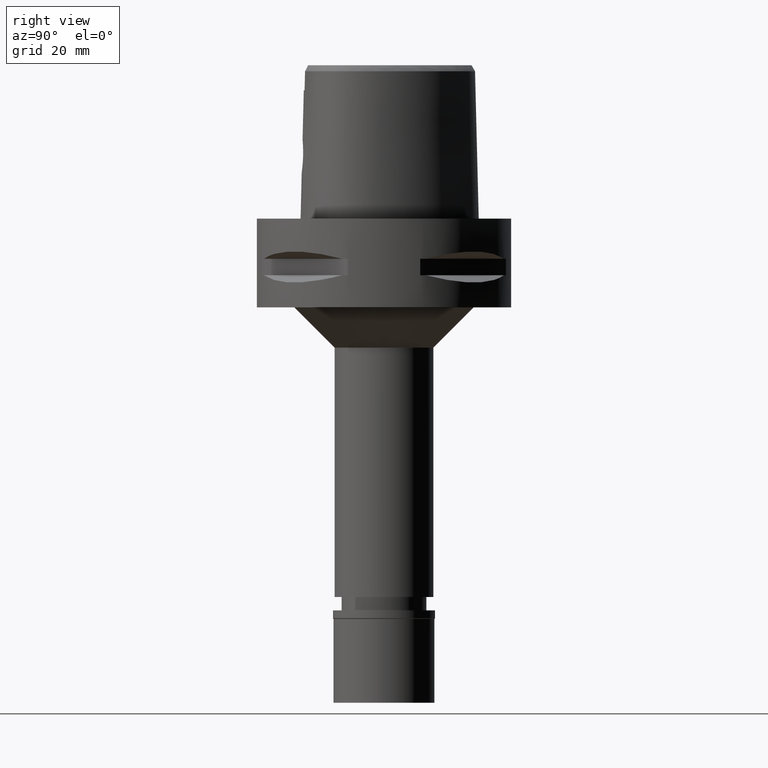
[diagram: clean part render]
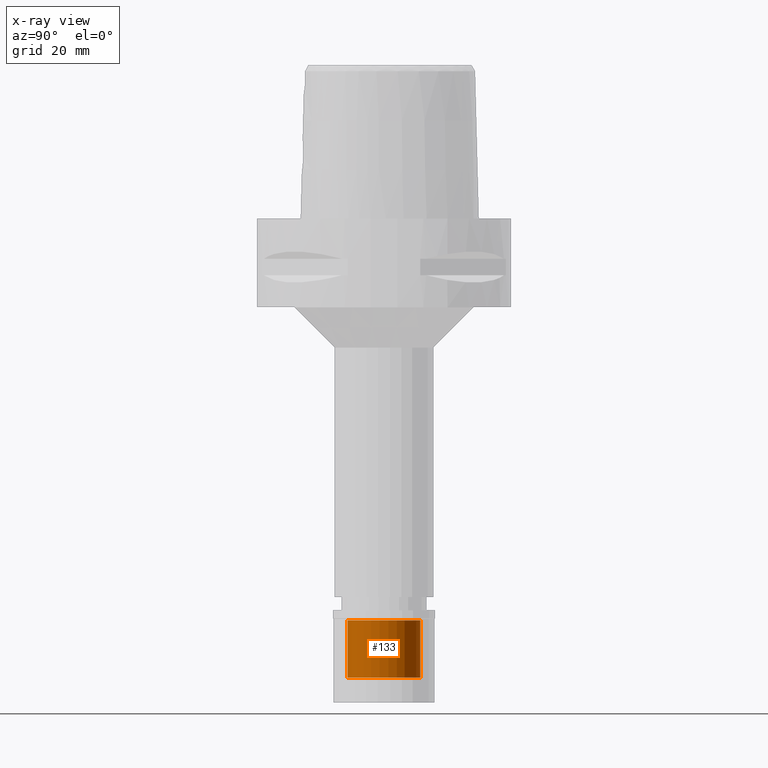
[diagram: x-ray — body ghosted, one internal face saturated and labeled with its STEP entity id]
A machine part, right view, then the same camera in x-ray: the body is ghosted and one INTERNAL B-rep face — a face not visible from any outside direction — is saturated and labeled: STEP entity #133.
In plain terms, the highlighted cylindrical surface (edge-blend (fillet) strip) has radius 9 mm, axis along (0, 0, -1).
Its self-contained STEP definition (entity closure, byte-faithful):
#133 = ADVANCED_FACE ( 'NONE', ( #753 ), #2309, .F. ) ;
#322 = AXIS2_PLACEMENT_3D ( 'NONE', #828, #855, #1645 ) ;
#340 = CARTESIAN_POINT ( 'NONE',  ( 0.0000000000000000000, 0.0000000000000000000, -2.500000000000000000 ) ) ;
#465 = CARTESIAN_POINT ( 'NONE',  ( 0.0000000000000000000, 9.000000000000000000, -2.500000000000000000 ) ) ;
#753 = FACE_OUTER_BOUND ( 'NONE', #2049, .T. ) ;
#828 = CARTESIAN_POINT ( 'NONE',  ( 0.0000000000000000000, 0.0000000000000000000, 0.0000000000000000000 ) ) ;
#832 = VECTOR ( 'NONE', #4109, 1000.000000000000000 ) ;
#855 = DIRECTION ( 'NONE',  ( 0.0000000000000000000, 0.0000000000000000000, -1.000000000000000000 ) ) ;
#910 = VERTEX_POINT ( 'NONE', #1503 ) ;
#962 = CARTESIAN_POINT ( 'NONE',  ( 0.0000000000000000000, 9.000000000000000000, -16.69999999999999929 ) ) ;
#992 = AXIS2_PLACEMENT_3D ( 'NONE', #340, #1536, #5049 ) ;
#1070 = CARTESIAN_POINT ( 'NONE',  ( 0.0000000000000000000, -9.000000000000000000, -16.69999999999999929 ) ) ;
#1162 = VECTOR ( 'NONE', #1894, 1000.000000000000000 ) ;
#1189 = ORIENTED_EDGE ( 'NONE', *, *, #4178, .T. ) ;
#1409 = CIRCLE ( 'NONE', #992, 9.000000000000000000 ) ;
#1427 = DIRECTION ( 'NONE',  ( 0.0000000000000000000, 0.0000000000000000000, -1.000000000000000000 ) ) ;
#1503 = CARTESIAN_POINT ( 'NONE',  ( 0.0000000000000000000, 9.000000000000000000, -16.69999999999999929 ) ) ;
#1536 = DIRECTION ( 'NONE',  ( 0.0000000000000000000, 0.0000000000000000000, 1.000000000000000000 ) ) ;
#1598 = CARTESIAN_POINT ( 'NONE',  ( 0.0000000000000000000, -9.000000000000000000, -2.500000000000000000 ) ) ;
#1645 = DIRECTION ( 'NONE',  ( 0.0000000000000000000, -1.000000000000000000, 0.0000000000000000000 ) ) ;
#1800 = LINE ( 'NONE', #962, #832 ) ;
#1894 = DIRECTION ( 'NONE',  ( 0.0000000000000000000, 0.0000000000000000000, 1.000000000000000000 ) ) ;
#1942 = EDGE_CURVE ( 'NONE', #2889, #3009, #2975, .T. ) ;
#2049 = EDGE_LOOP ( 'NONE', ( #1189, #4995, #3867, #3061 ) ) ;
#2309 = CYLINDRICAL_SURFACE ( 'NONE', #322, 9.000000000000000000 ) ;
#2889 = VERTEX_POINT ( 'NONE', #1070 ) ;
#2975 = LINE ( 'NONE', #4628, #1162 ) ;
#3009 = VERTEX_POINT ( 'NONE', #1598 ) ;
#3061 = ORIENTED_EDGE ( 'NONE', *, *, #4763, .F. ) ;
#3531 = EDGE_CURVE ( 'NONE', #3009, #5002, #1409, .T. ) ;
#3622 = CIRCLE ( 'NONE', #4771, 9.000000000000000000 ) ;
#3867 = ORIENTED_EDGE ( 'NONE', *, *, #3531, .T. ) ;
#4109 = DIRECTION ( 'NONE',  ( 0.0000000000000000000, 0.0000000000000000000, 1.000000000000000000 ) ) ;
#4178 = EDGE_CURVE ( 'NONE', #910, #2889, #3622, .T. ) ;
#4628 = CARTESIAN_POINT ( 'NONE',  ( 0.0000000000000000000, -9.000000000000000000, -16.69999999999999929 ) ) ;
#4763 = EDGE_CURVE ( 'NONE', #910, #5002, #1800, .T. ) ;
#4771 = AXIS2_PLACEMENT_3D ( 'NONE', #4956, #1427, #4925 ) ;
#4925 = DIRECTION ( 'NONE',  ( 0.0000000000000000000, 1.000000000000000000, 0.0000000000000000000 ) ) ;
#4956 = CARTESIAN_POINT ( 'NONE',  ( 0.0000000000000000000, 0.0000000000000000000, -16.69999999999999929 ) ) ;
#4995 = ORIENTED_EDGE ( 'NONE', *, *, #1942, .T. ) ;
#5002 = VERTEX_POINT ( 'NONE', #465 ) ;
#5049 = DIRECTION ( 'NONE',  ( 0.0000000000000000000, -1.000000000000000000, 0.0000000000000000000 ) ) ;